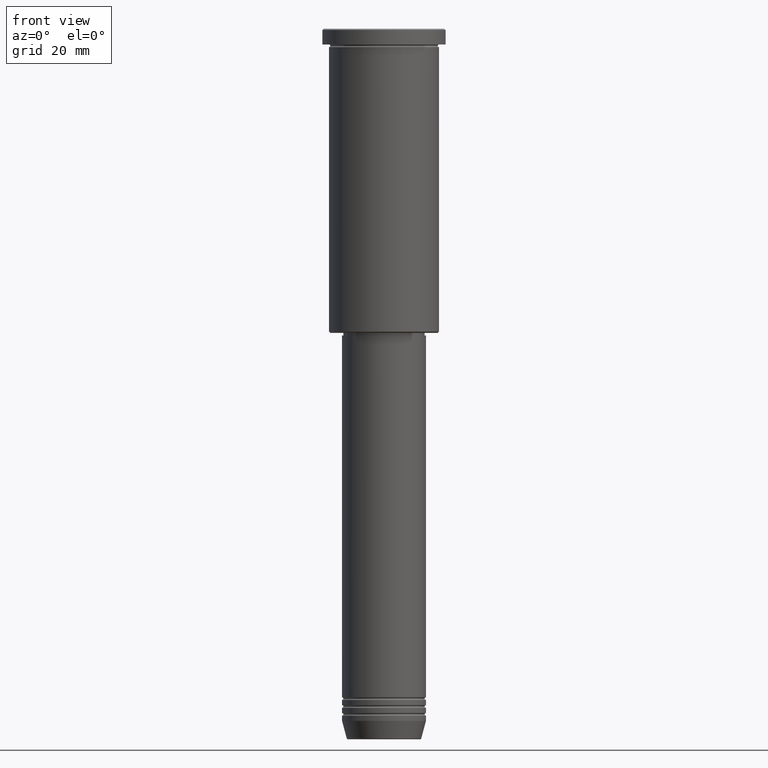
[diagram: clean part render]
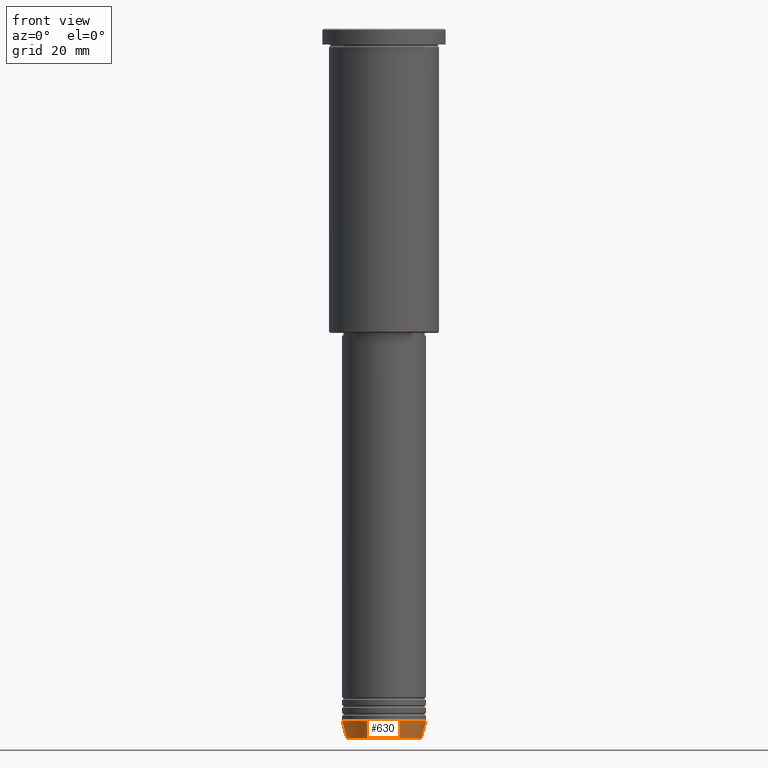
[diagram: same view with one face highlighted and labeled with its STEP entity id]
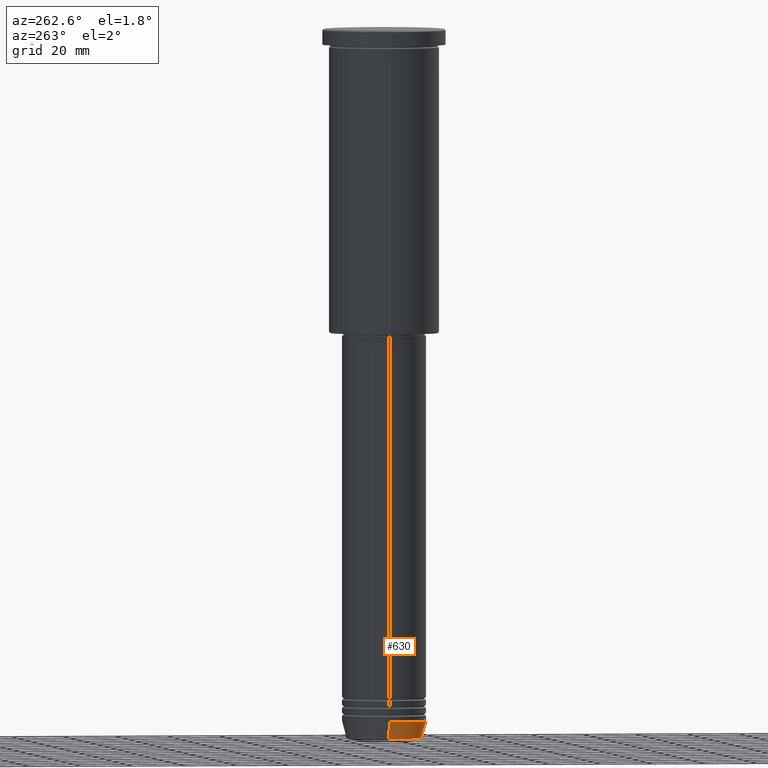
[diagram: same view with one face highlighted and labeled with its STEP entity id]
A machine part, front view. The second image highlights one B-rep face of the part: STEP entity #630.
A second angle (auxiliary view) of the same face is appended — the face is thin or edge-on in the first view.
In plain terms, the highlighted conical surface has half-angle 15 deg.
Its self-contained STEP definition (entity closure, byte-faithful):
#14 = DIRECTION ( 'NONE',  ( -0.2588190451025213501, 3.169619151431772337E-17, 0.9659258262890680902 ) ) ;
#17 = VERTEX_POINT ( 'NONE', #859 ) ;
#39 = LINE ( 'NONE', #743, #255 ) ;
#178 = CARTESIAN_POINT ( 'NONE',  ( 0.000000000000000000, 0.000000000000000000, -264.0000000000000000 ) ) ;
#187 = DIRECTION ( 'NONE',  ( 1.000000000000000000, 0.000000000000000000, 0.000000000000000000 ) ) ;
#194 = ORIENTED_EDGE ( 'NONE', *, *, #650, .F. ) ;
#255 = VECTOR ( 'NONE', #1029, 1000.000000000000000 ) ;
#261 = ORIENTED_EDGE ( 'NONE', *, *, #286, .T. ) ;
#273 = CARTESIAN_POINT ( 'NONE',  ( 0.000000000000000000, 0.000000000000000000, -264.0000000000000000 ) ) ;
#286 = EDGE_CURVE ( 'NONE', #17, #357, #394, .T. ) ;
#303 = EDGE_LOOP ( 'NONE', ( #815, #261, #1085, #194 ) ) ;
#318 = CARTESIAN_POINT ( 'NONE',  ( -16.00000000000000000, 1.959434878635765131E-15, -264.0000000000000000 ) ) ;
#349 = EDGE_CURVE ( 'NONE', #357, #505, #39, .T. ) ;
#357 = VERTEX_POINT ( 'NONE', #994 ) ;
#365 = CARTESIAN_POINT ( 'NONE',  ( 0.000000000000000000, 0.000000000000000000, -270.6294095225512706 ) ) ;
#381 = CARTESIAN_POINT ( 'NONE',  ( 16.00000000000000000, 0.000000000000000000, -264.0000000000000000 ) ) ;
#392 = DIRECTION ( 'NONE',  ( 1.000000000000000000, 0.000000000000000000, 0.000000000000000000 ) ) ;
#394 = CIRCLE ( 'NONE', #1130, 14.22365507213718772 ) ;
#435 = AXIS2_PLACEMENT_3D ( 'NONE', #273, #844, #392 ) ;
#479 = CONICAL_SURFACE ( 'NONE', #435, 16.00000000000000000, 0.2617993877991500740 ) ;
#505 = VERTEX_POINT ( 'NONE', #381 ) ;
#558 = DIRECTION ( 'NONE',  ( -0.000000000000000000, -0.000000000000000000, 1.000000000000000000 ) ) ;
#570 = CARTESIAN_POINT ( 'NONE',  ( -16.00000000000000000, 1.959434878635765131E-15, -264.0000000000000000 ) ) ;
#630 = ADVANCED_FACE ( 'NONE', ( #1093 ), #479, .T. ) ;
#643 = DIRECTION ( 'NONE',  ( -0.000000000000000000, -0.000000000000000000, 1.000000000000000000 ) ) ;
#650 = EDGE_CURVE ( 'NONE', #767, #505, #1089, .T. ) ;
#675 = VECTOR ( 'NONE', #14, 1000.000000000000000 ) ;
#739 = LINE ( 'NONE', #570, #675 ) ;
#743 = CARTESIAN_POINT ( 'NONE',  ( 16.00000000000000000, 0.000000000000000000, -264.0000000000000000 ) ) ;
#756 = AXIS2_PLACEMENT_3D ( 'NONE', #178, #558, #822 ) ;
#767 = VERTEX_POINT ( 'NONE', #318 ) ;
#815 = ORIENTED_EDGE ( 'NONE', *, *, #1088, .F. ) ;
#822 = DIRECTION ( 'NONE',  ( 1.000000000000000000, 0.000000000000000000, 0.000000000000000000 ) ) ;
#844 = DIRECTION ( 'NONE',  ( -0.000000000000000000, -0.000000000000000000, 1.000000000000000000 ) ) ;
#859 = CARTESIAN_POINT ( 'NONE',  ( -14.22365507213718772, 1.850665122131323337E-15, -270.6294095225512706 ) ) ;
#994 = CARTESIAN_POINT ( 'NONE',  ( 14.22365507213718772, 0.000000000000000000, -270.6294095225512706 ) ) ;
#1029 = DIRECTION ( 'NONE',  ( 0.2588190451025213501, 0.000000000000000000, 0.9659258262890680902 ) ) ;
#1085 = ORIENTED_EDGE ( 'NONE', *, *, #349, .T. ) ;
#1088 = EDGE_CURVE ( 'NONE', #17, #767, #739, .T. ) ;
#1089 = CIRCLE ( 'NONE', #756, 16.00000000000000000 ) ;
#1093 = FACE_OUTER_BOUND ( 'NONE', #303, .T. ) ;
#1130 = AXIS2_PLACEMENT_3D ( 'NONE', #365, #643, #187 ) ;